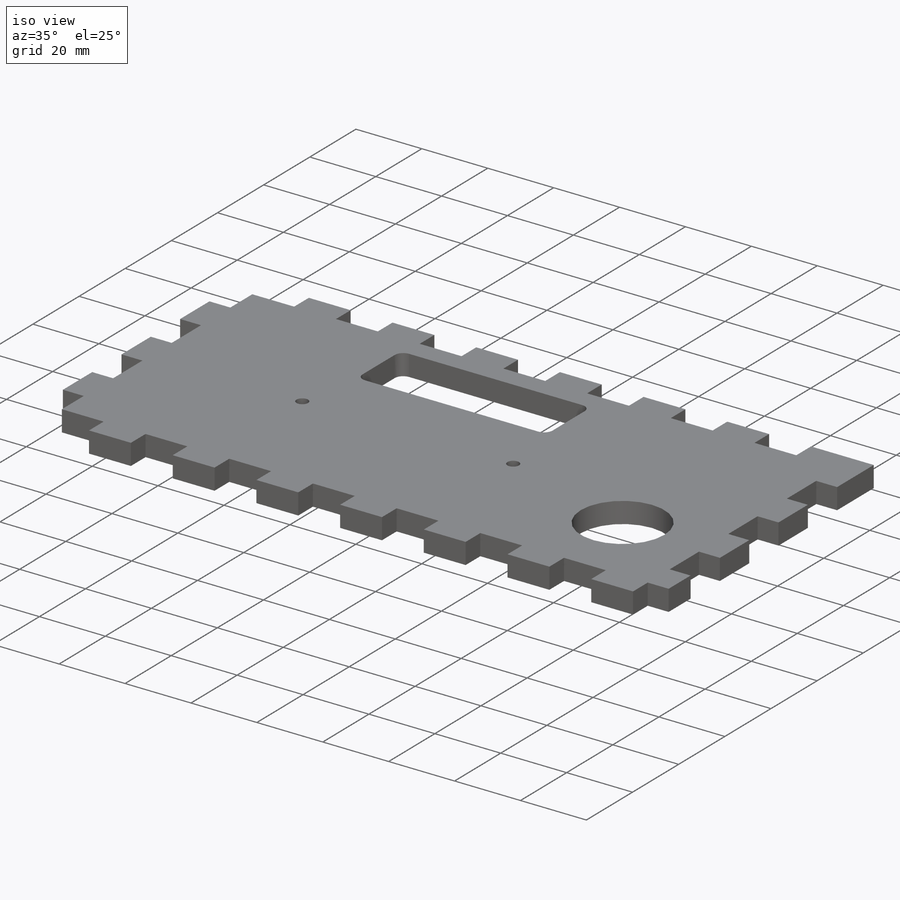
[diagram: iso view]
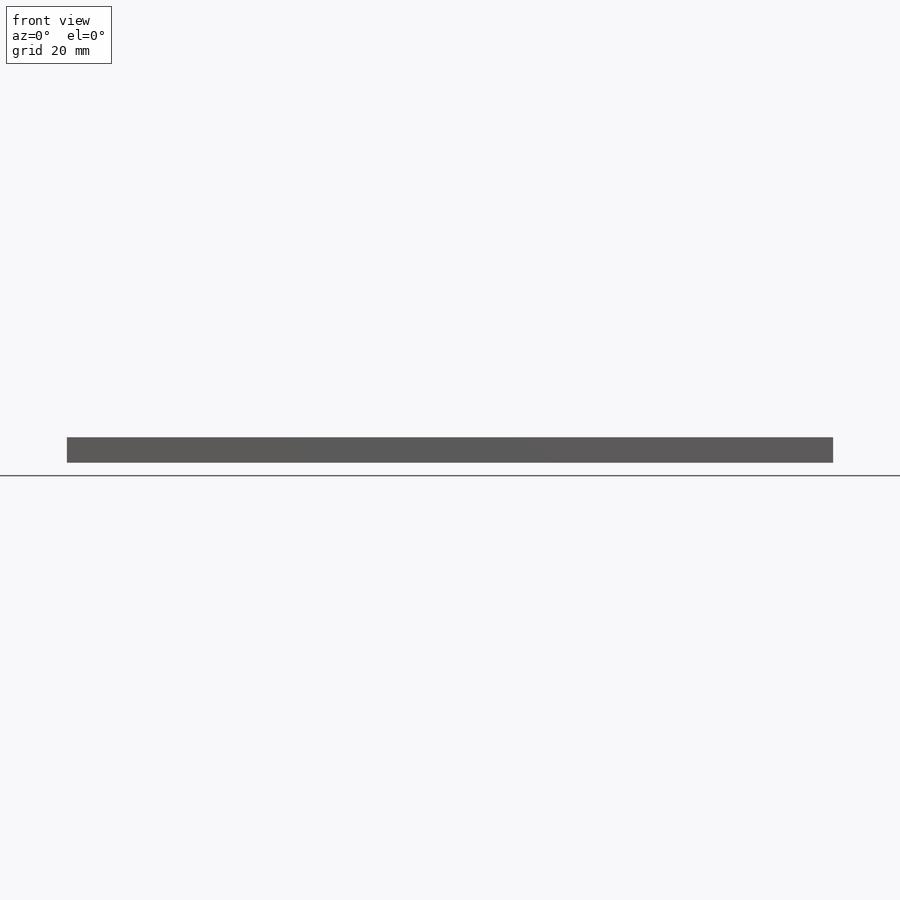
[diagram: front view]
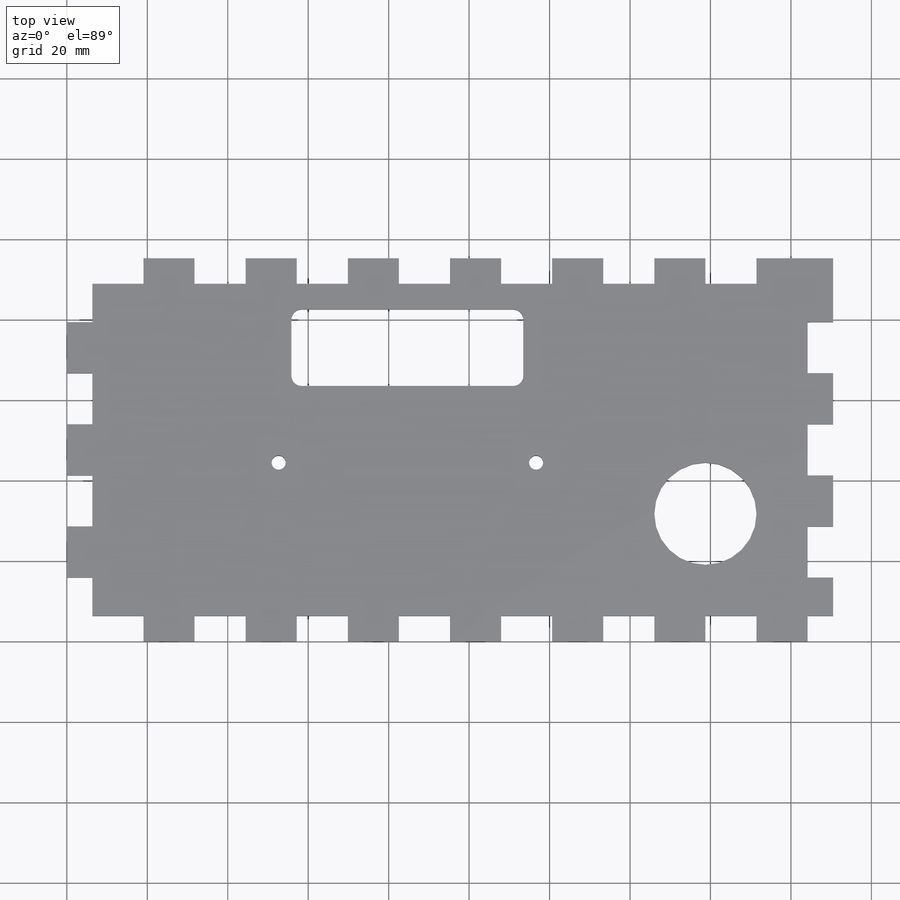
[diagram: top view]
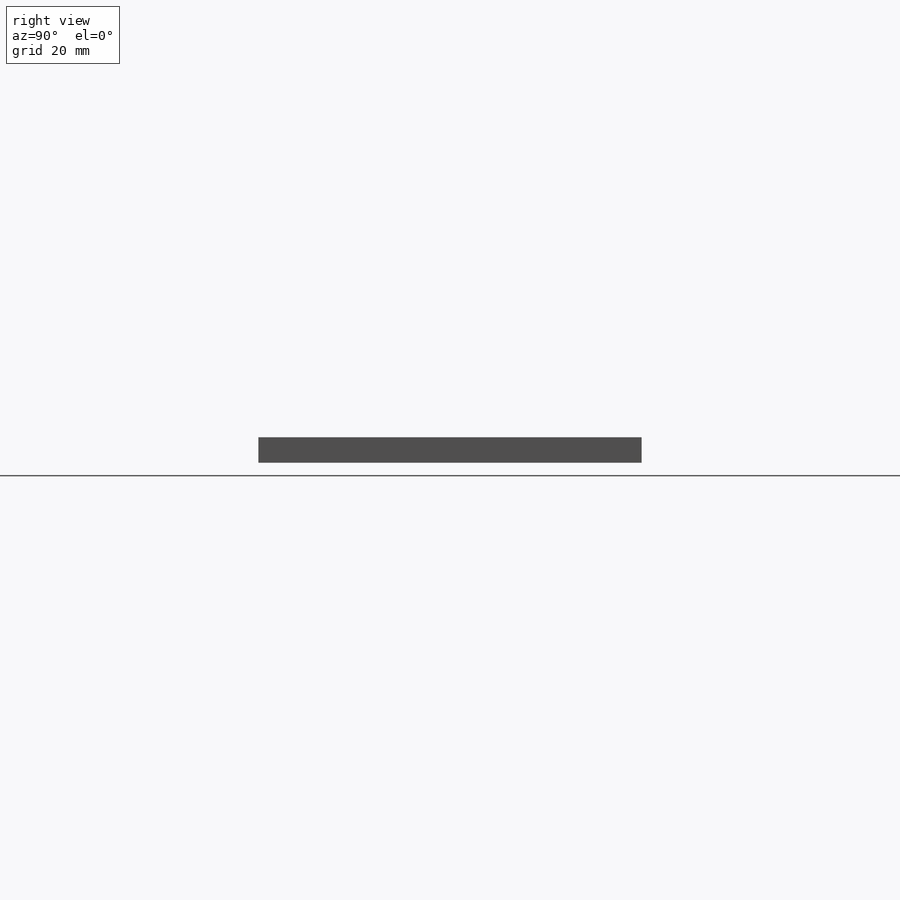
[diagram: right view]
SOLIDWORKS PART (.sldprt)
format: sldprt  version: not decoded by parser v0  size: 799,744 bytes
history: native  units: mm
features: sketch x11, cut_extrude x9, pattern_linear x3, extrude x2, material x1, fillet x1 (+13 scaffold rows collapsed)
feature tree (40):
  scaffold x13  (default folders/planes/origin — collapsed)
  material  "Pine"
  sketch  "Sketch1"  dims[D1=431.8mm D2=95.25mm]
  extrude  "Boss-Extrude1"  Depth=6.35mm
  sketch  "Sketch2"  dims[c1.D1=6.35mm c1.D2=12.7mm c2.D1=6.35mm c2.D2=12.7mm c2.D3=6.35mm]
  cut_extrude  "Cut-Extrude1"  [1 undecoded]
  pattern_linear  "LPattern1"  Count1=17 Count2=1 Spacing1=25.4mm Spacing2=2.54mm
  sketch  "Sketch3"
  cut_extrude  "Cut-Extrude2"  [1 undecoded]
  sketch  "Sketch5"  dims[D1=6.35mm D2=12.7mm]
  cut_extrude  "Cut-Extrude4"  [1 undecoded]
  pattern_linear  "LPattern2"  Count1=2 Count2=2 Spacing1=25.4mm Spacing2=25.4mm
  sketch  "Sketch6"  dims[D1=46.0375mm D2=114.3mm]
  cut_extrude  "Cut-Extrude5"  [1 undecoded]
  sketch  "Sketch7"  dims[D6=3.5mm D1=44.45mm D2=64.0mm D3=64.0mm D4=116.65mm D5=116.65mm]
  cut_extrude  "Cut-Extrude6"  [1 undecoded]
  sketch  "Sketch8"
  cut_extrude  "Cut-Extrude7"  [1 undecoded]
  pattern_linear  "LPattern3"  Count1=2 Count2=1 Spacing1=425.45mm Spacing2=2.54mm
  sketch  "Sketch9"
  cut_extrude  "Cut-Extrude8"  [1 undecoded]
  sketch  "Sketch11"
  extrude  "Boss-Extrude2"  [1 undecoded]
  sketch  "Sketch12"  dims[D1=3.175mm D2=6.35mm D3=3.175mm D4=19.05mm]
  cut_extrude  "Cut-Extrude10"  [1 undecoded]
  fillet  "Fillet1"  Radius=2.54mm
  sketch  "Sketch13"  dims[c1.D2=~25.525217mm c1.D3=25.4mm c1.D1=25.4mm c2.D2=25.4mm]
  cut_extrude  "Cut-Extrude11"  [1 undecoded]
decode coverage: 12 of 26 modeling features carry decoded parameters
note: ~ marks probable driven/reference dimensions
note: 10 parameter values undecoded
summary: no parameter record found for 10 features
note: suppression state not decoded; provenance and decode notes live in map.json
